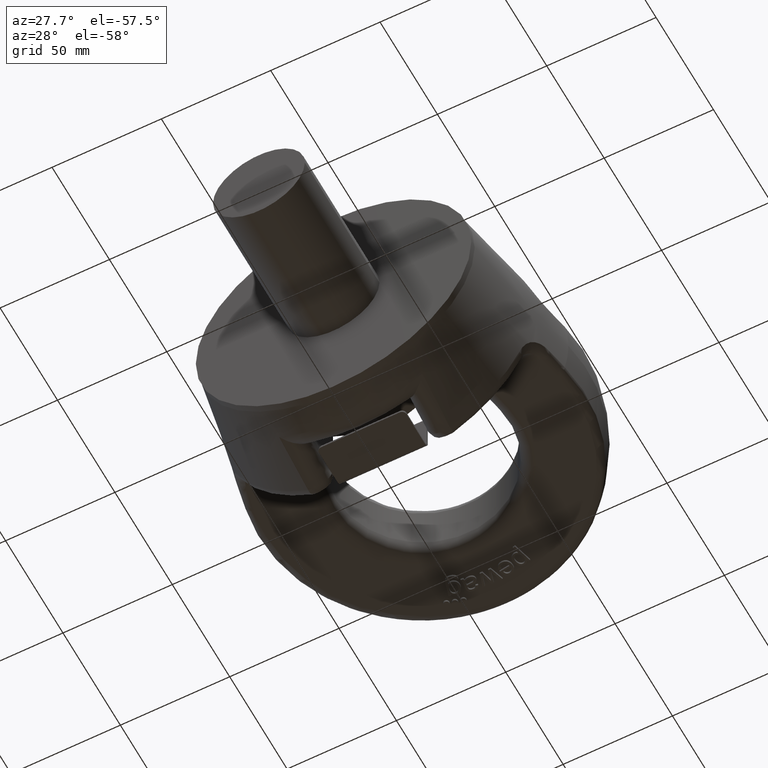
[diagram: clean part render]
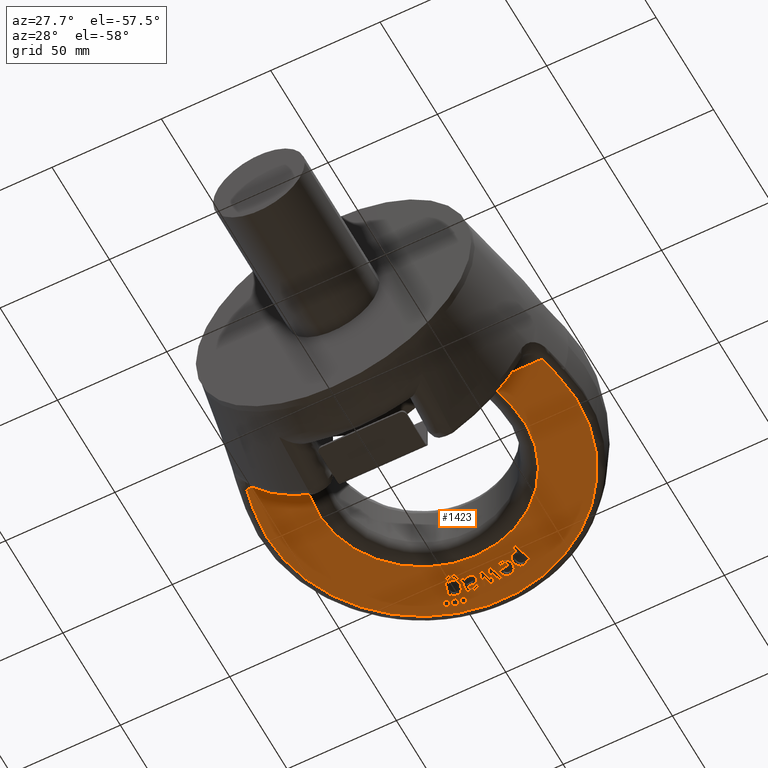
[diagram: same view with one face highlighted and labeled with its STEP entity id]
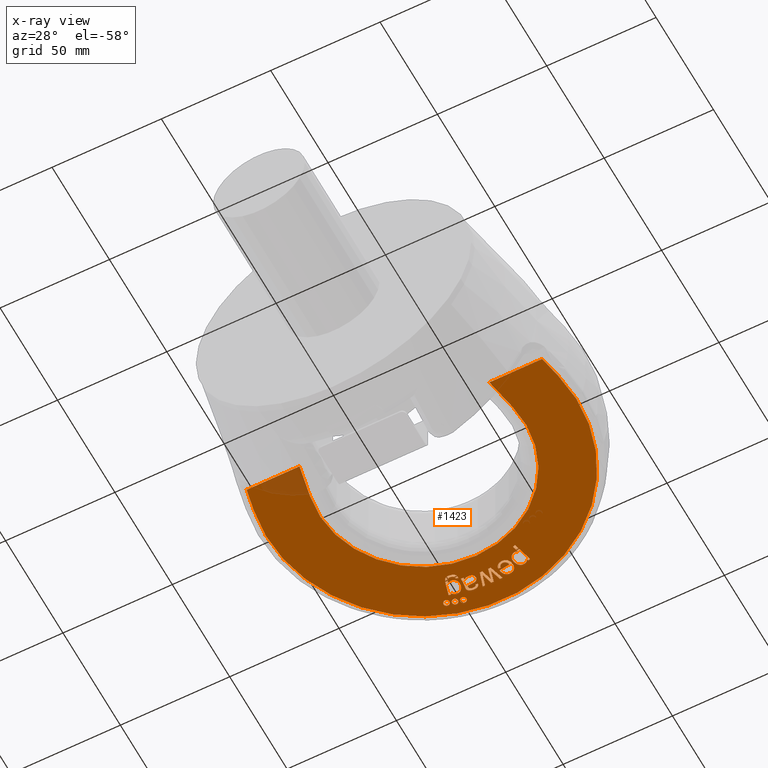
[diagram: x-ray of the same camera — body ghosted, the highlighted face saturated]
A machine part, auxiliary view. The second image highlights one B-rep face of the part: STEP entity #1423.
The next image is the same camera in x-ray: the body ghosted, the highlighted face saturated — about 3% of this face is hidden behind the body in this view.
In plain terms, the highlighted planar face has unit normal (-0, -0, 1).
Its self-contained STEP definition (entity closure, byte-faithful):
#1423=ADVANCED_FACE('',(#1789,#1790,#1791,#1792,#1793,#1794,#1795,#1796,
#1797),#1605,.F.);
#1605=PLANE('',#5249);
#1709=CIRCLE('',#5244,1.35);
#1710=CIRCLE('',#5245,1.35);
#1711=CIRCLE('',#5246,1.35);
#1712=CIRCLE('',#5247,47.2);
#1713=CIRCLE('',#5248,70.953505903514);
#1789=FACE_BOUND('',#1946,.T.);
#1790=FACE_BOUND('',#1947,.T.);
#1791=FACE_BOUND('',#1948,.T.);
#1792=FACE_BOUND('',#1949,.T.);
#1793=FACE_BOUND('',#1950,.T.);
#1794=FACE_BOUND('',#1951,.T.);
#1795=FACE_BOUND('',#1952,.T.);
#1796=FACE_BOUND('',#1953,.T.);
#1797=FACE_BOUND('',#1954,.T.);
#1946=EDGE_LOOP('',(#3273,#3274,#3275,#3276,#3277,#3278,#3279));
#1947=EDGE_LOOP('',(#3280,#3281,#3282,#3283,#3284,#3285,#3286,#3287,#3288,
#3289,#3290,#3291,#3292,#3293,#3294));
#1948=EDGE_LOOP('',(#3295,#3296,#3297,#3298,#3299));
#1949=EDGE_LOOP('',(#3300));
#1950=EDGE_LOOP('',(#3301));
#1951=EDGE_LOOP('',(#3302));
#1952=EDGE_LOOP('',(#3303,#3304,#3305,#3306,#3307,#3308,#3309,#3310));
#1953=EDGE_LOOP('',(#3311,#3312,#3313,#3314,#3315,#3316));
#1954=EDGE_LOOP('',(#3317,#3318,#3319,#3320,#3321,#3322,#3323,#3324,#3325));
#2226=LINE('',#8098,#2534);
#2227=LINE('',#8130,#2535);
#2228=LINE('',#8132,#2536);
#2229=LINE('',#8133,#2537);
#2230=LINE('',#8136,#2538);
#2231=LINE('',#8138,#2539);
#2232=LINE('',#8140,#2540);
#2233=LINE('',#8154,#2541);
#2234=LINE('',#8156,#2542);
#2235=LINE('',#8172,#2543);
#2236=LINE('',#8174,#2544);
#2237=LINE('',#8176,#2545);
#2238=LINE('',#8178,#2546);
#2239=LINE('',#8180,#2547);
#2240=LINE('',#8196,#2548);
#2241=LINE('',#8219,#2549);
#2242=LINE('',#8229,#2550);
#2243=LINE('',#8231,#2551);
#2244=LINE('',#8245,#2552);
#2245=LINE('',#8247,#2553);
#2246=LINE('',#8248,#2554);
#2247=LINE('',#8251,#2555);
#2248=LINE('',#8253,#2556);
#2249=LINE('',#8255,#2557);
#2250=LINE('',#8257,#2558);
#2251=LINE('',#8281,#2559);
#2252=LINE('',#8326,#2560);
#2534=VECTOR('',#5806,1.);
#2535=VECTOR('',#5807,1.);
#2536=VECTOR('',#5808,1.);
#2537=VECTOR('',#5809,1.);
#2538=VECTOR('',#5810,1.);
#2539=VECTOR('',#5811,1.);
#2540=VECTOR('',#5812,1.);
#2541=VECTOR('',#5813,1.);
#2542=VECTOR('',#5814,1.);
#2543=VECTOR('',#5815,1.);
#2544=VECTOR('',#5816,1.);
#2545=VECTOR('',#5817,1.);
#2546=VECTOR('',#5818,1.);
#2547=VECTOR('',#5819,1.);
#2548=VECTOR('',#5820,1.);
#2549=VECTOR('',#5821,1.);
#2550=VECTOR('',#5830,1.);
#2551=VECTOR('',#5831,1.);
#2552=VECTOR('',#5834,1.);
#2553=VECTOR('',#5835,1.);
#2554=VECTOR('',#5836,1.);
#2555=VECTOR('',#5837,1.);
#2556=VECTOR('',#5838,1.);
#2557=VECTOR('',#5839,1.);
#2558=VECTOR('',#5840,1.);
#2559=VECTOR('',#5841,1.);
#2560=VECTOR('',#5842,1.);
#3273=ORIENTED_EDGE('',*,*,#4570,.T.);
#3274=ORIENTED_EDGE('',*,*,#4571,.T.);
#3275=ORIENTED_EDGE('',*,*,#4572,.T.);
#3276=ORIENTED_EDGE('',*,*,#4573,.T.);
#3277=ORIENTED_EDGE('',*,*,#4574,.T.);
#3278=ORIENTED_EDGE('',*,*,#4575,.T.);
#3279=ORIENTED_EDGE('',*,*,#4576,.T.);
#3280=ORIENTED_EDGE('',*,*,#4577,.T.);
#3281=ORIENTED_EDGE('',*,*,#4578,.T.);
#3282=ORIENTED_EDGE('',*,*,#4579,.T.);
#3283=ORIENTED_EDGE('',*,*,#4580,.T.);
#3284=ORIENTED_EDGE('',*,*,#4581,.T.);
#3285=ORIENTED_EDGE('',*,*,#4582,.T.);
#3286=ORIENTED_EDGE('',*,*,#4583,.T.);
#3287=ORIENTED_EDGE('',*,*,#4584,.T.);
#3288=ORIENTED_EDGE('',*,*,#4585,.T.);
#3289=ORIENTED_EDGE('',*,*,#4586,.T.);
#3290=ORIENTED_EDGE('',*,*,#4587,.T.);
#3291=ORIENTED_EDGE('',*,*,#4588,.T.);
#3292=ORIENTED_EDGE('',*,*,#4589,.T.);
#3293=ORIENTED_EDGE('',*,*,#4590,.T.);
#3294=ORIENTED_EDGE('',*,*,#4591,.T.);
#3295=ORIENTED_EDGE('',*,*,#4592,.T.);
#3296=ORIENTED_EDGE('',*,*,#4593,.T.);
#3297=ORIENTED_EDGE('',*,*,#4594,.T.);
#3298=ORIENTED_EDGE('',*,*,#4595,.T.);
#3299=ORIENTED_EDGE('',*,*,#4596,.T.);
#3300=ORIENTED_EDGE('',*,*,#4597,.F.);
#3301=ORIENTED_EDGE('',*,*,#4598,.F.);
#3302=ORIENTED_EDGE('',*,*,#4599,.F.);
#3303=ORIENTED_EDGE('',*,*,#4600,.T.);
#3304=ORIENTED_EDGE('',*,*,#4601,.T.);
#3305=ORIENTED_EDGE('',*,*,#4602,.T.);
#3306=ORIENTED_EDGE('',*,*,#4603,.T.);
#3307=ORIENTED_EDGE('',*,*,#4604,.T.);
#3308=ORIENTED_EDGE('',*,*,#4605,.T.);
#3309=ORIENTED_EDGE('',*,*,#4606,.T.);
#3310=ORIENTED_EDGE('',*,*,#4607,.T.);
#3311=ORIENTED_EDGE('',*,*,#4608,.T.);
#3312=ORIENTED_EDGE('',*,*,#4609,.T.);
#3313=ORIENTED_EDGE('',*,*,#4610,.T.);
#3314=ORIENTED_EDGE('',*,*,#4611,.T.);
#3315=ORIENTED_EDGE('',*,*,#4612,.T.);
#3316=ORIENTED_EDGE('',*,*,#4613,.T.);
#3317=ORIENTED_EDGE('',*,*,#4614,.T.);
#3318=ORIENTED_EDGE('',*,*,#4615,.T.);
#3319=ORIENTED_EDGE('',*,*,#4616,.T.);
#3320=ORIENTED_EDGE('',*,*,#4617,.T.);
#3321=ORIENTED_EDGE('',*,*,#4618,.T.);
#3322=ORIENTED_EDGE('',*,*,#4619,.T.);
#3323=ORIENTED_EDGE('',*,*,#4620,.T.);
#3324=ORIENTED_EDGE('',*,*,#4621,.T.);
#3325=ORIENTED_EDGE('',*,*,#4622,.T.);
#4087=VERTEX_POINT('',#8091);
#4088=VERTEX_POINT('',#8092);
#4089=VERTEX_POINT('',#8097);
#4090=VERTEX_POINT('',#8099);
#4091=VERTEX_POINT('',#8112);
#4092=VERTEX_POINT('',#8129);
#4093=VERTEX_POINT('',#8131);
#4094=VERTEX_POINT('',#8134);
#4095=VERTEX_POINT('',#8135);
#4096=VERTEX_POINT('',#8137);
#4097=VERTEX_POINT('',#8139);
#4098=VERTEX_POINT('',#8141);
#4099=VERTEX_POINT('',#8148);
#4100=VERTEX_POINT('',#8153);
#4101=VERTEX_POINT('',#8155);
#4102=VERTEX_POINT('',#8157);
#4103=VERTEX_POINT('',#8164);
#4104=VERTEX_POINT('',#8171);
#4105=VERTEX_POINT('',#8173);
#4106=VERTEX_POINT('',#8175);
#4107=VERTEX_POINT('',#8177);
#4108=VERTEX_POINT('',#8179);
#4109=VERTEX_POINT('',#8189);
#4110=VERTEX_POINT('',#8190);
#4111=VERTEX_POINT('',#8195);
#4112=VERTEX_POINT('',#8197);
#4113=VERTEX_POINT('',#8218);
#4114=VERTEX_POINT('',#8221);
#4115=VERTEX_POINT('',#8223);
#4116=VERTEX_POINT('',#8225);
#4117=VERTEX_POINT('',#8227);
#4118=VERTEX_POINT('',#8228);
#4119=VERTEX_POINT('',#8230);
#4120=VERTEX_POINT('',#8232);
#4121=VERTEX_POINT('',#8237);
#4122=VERTEX_POINT('',#8239);
#4123=VERTEX_POINT('',#8244);
#4124=VERTEX_POINT('',#8246);
#4125=VERTEX_POINT('',#8249);
#4126=VERTEX_POINT('',#8250);
#4127=VERTEX_POINT('',#8252);
#4128=VERTEX_POINT('',#8254);
#4129=VERTEX_POINT('',#8256);
#4130=VERTEX_POINT('',#8258);
#4131=VERTEX_POINT('',#8282);
#4132=VERTEX_POINT('',#8283);
#4133=VERTEX_POINT('',#8288);
#4134=VERTEX_POINT('',#8305);
#4135=VERTEX_POINT('',#8312);
#4136=VERTEX_POINT('',#8325);
#4137=VERTEX_POINT('',#8327);
#4138=VERTEX_POINT('',#8332);
#4139=VERTEX_POINT('',#8345);
#4570=EDGE_CURVE('',#4087,#4088,#4995,.T.);
#4571=EDGE_CURVE('',#4088,#4089,#4996,.T.);
#4572=EDGE_CURVE('',#4089,#4090,#2226,.T.);
#4573=EDGE_CURVE('',#4090,#4091,#4997,.T.);
#4574=EDGE_CURVE('',#4091,#4092,#4998,.T.);
#4575=EDGE_CURVE('',#4092,#4093,#2227,.T.);
#4576=EDGE_CURVE('',#4093,#4087,#2228,.T.);
#4577=EDGE_CURVE('',#4094,#4095,#2229,.T.);
#4578=EDGE_CURVE('',#4095,#4096,#2230,.T.);
#4579=EDGE_CURVE('',#4096,#4097,#2231,.T.);
#4580=EDGE_CURVE('',#4097,#4098,#2232,.T.);
#4581=EDGE_CURVE('',#4098,#4099,#4999,.T.);
#4582=EDGE_CURVE('',#4099,#4100,#5000,.T.);
#4583=EDGE_CURVE('',#4100,#4101,#2233,.T.);
#4584=EDGE_CURVE('',#4101,#4102,#2234,.T.);
#4585=EDGE_CURVE('',#4102,#4103,#5001,.T.);
#4586=EDGE_CURVE('',#4103,#4104,#5002,.T.);
#4587=EDGE_CURVE('',#4104,#4105,#2235,.T.);
#4588=EDGE_CURVE('',#4105,#4106,#2236,.T.);
#4589=EDGE_CURVE('',#4106,#4107,#2237,.T.);
#4590=EDGE_CURVE('',#4107,#4108,#2238,.T.);
#4591=EDGE_CURVE('',#4108,#4094,#2239,.T.);
#4592=EDGE_CURVE('',#4109,#4110,#5003,.T.);
#4593=EDGE_CURVE('',#4110,#4111,#5004,.T.);
#4594=EDGE_CURVE('',#4111,#4112,#2240,.T.);
#4595=EDGE_CURVE('',#4112,#4113,#5005,.T.);
#4596=EDGE_CURVE('',#4113,#4109,#2241,.T.);
#4597=EDGE_CURVE('',#4114,#4114,#1709,.T.);
#4598=EDGE_CURVE('',#4115,#4115,#1710,.T.);
#4599=EDGE_CURVE('',#4116,#4116,#1711,.T.);
#4600=EDGE_CURVE('',#4117,#4118,#1712,.T.);
#4601=EDGE_CURVE('',#4118,#4119,#2242,.T.);
#4602=EDGE_CURVE('',#4119,#4120,#2243,.T.);
#4603=EDGE_CURVE('',#4120,#4121,#5006,.T.);
#4604=EDGE_CURVE('',#4121,#4122,#1713,.T.);
#4605=EDGE_CURVE('',#4122,#4123,#5007,.T.);
#4606=EDGE_CURVE('',#4123,#4124,#2244,.T.);
#4607=EDGE_CURVE('',#4124,#4117,#2245,.T.);
#4608=EDGE_CURVE('',#4125,#4126,#2246,.T.);
#4609=EDGE_CURVE('',#4126,#4127,#2247,.T.);
#4610=EDGE_CURVE('',#4127,#4128,#2248,.T.);
#4611=EDGE_CURVE('',#4128,#4129,#2249,.T.);
#4612=EDGE_CURVE('',#4129,#4130,#2250,.T.);
#4613=EDGE_CURVE('',#4130,#4125,#5008,.T.);
#4614=EDGE_CURVE('',#4131,#4132,#2251,.T.);
#4615=EDGE_CURVE('',#4132,#4133,#5009,.T.);
#4616=EDGE_CURVE('',#4133,#4134,#5010,.T.);
#4617=EDGE_CURVE('',#4134,#4135,#5011,.T.);
#4618=EDGE_CURVE('',#4135,#4136,#5012,.T.);
#4619=EDGE_CURVE('',#4136,#4137,#2252,.T.);
#4620=EDGE_CURVE('',#4137,#4138,#5013,.T.);
#4621=EDGE_CURVE('',#4138,#4139,#5014,.T.);
#4622=EDGE_CURVE('',#4139,#4131,#5015,.T.);
#4995=B_SPLINE_CURVE_WITH_KNOTS('',3,(#8079,#8080,#8081,#8082,#8083,#8084,
#8085,#8086,#8087,#8088,#8089,#8090),.UNSPECIFIED.,.F.,.F.,(4,2,2,2,2,4),
(0.,0.30564575489209,0.470829306249215,0.636012857606335,0.802206343843956,
1.),.UNSPECIFIED.);
#4996=B_SPLINE_CURVE_WITH_KNOTS('',3,(#8093,#8094,#8095,#8096),
 .UNSPECIFIED.,.F.,.F.,(4,4),(0.,1.),.UNSPECIFIED.);
#4997=B_SPLINE_CURVE_WITH_KNOTS('',3,(#8100,#8101,#8102,#8103,#8104,#8105,
#8106,#8107,#8108,#8109,#8110,#8111),.UNSPECIFIED.,.F.,.F.,(4,2,2,2,2,4),
(0.,0.163304651309286,0.382303784248531,0.6193756611682,0.856447538087862,
1.),.UNSPECIFIED.);
#4998=B_SPLINE_CURVE_WITH_KNOTS('',3,(#8113,#8114,#8115,#8116,#8117,#8118,
#8119,#8120,#8121,#8122,#8123,#8124,#8125,#8126,#8127,#8128),
 .UNSPECIFIED.,.F.,.F.,(4,2,2,2,2,2,2,4),(0.,0.139503666745452,0.312880428291716,
0.486257189837981,0.605370995480452,0.723854105689072,0.842337215897691,
1.),.UNSPECIFIED.);
#4999=B_SPLINE_CURVE_WITH_KNOTS('',3,(#8142,#8143,#8144,#8145,#8146,#8147),
 .UNSPECIFIED.,.F.,.F.,(4,2,4),(0.,0.728909607654954,1.),.UNSPECIFIED.);
#5000=B_SPLINE_CURVE_WITH_KNOTS('',3,(#8149,#8150,#8151,#8152),
 .UNSPECIFIED.,.F.,.F.,(4,4),(0.,1.),.UNSPECIFIED.);
#5001=B_SPLINE_CURVE_WITH_KNOTS('',3,(#8158,#8159,#8160,#8161,#8162,#8163),
 .UNSPECIFIED.,.F.,.F.,(4,2,4),(0.,0.752082276025117,1.),.UNSPECIFIED.);
#5002=B_SPLINE_CURVE_WITH_KNOTS('',3,(#8165,#8166,#8167,#8168,#8169,#8170),
 .UNSPECIFIED.,.F.,.F.,(4,2,4),(0.,0.250451922487266,1.),.UNSPECIFIED.);
#5003=B_SPLINE_CURVE_WITH_KNOTS('',3,(#8181,#8182,#8183,#8184,#8185,#8186,
#8187,#8188),.UNSPECIFIED.,.F.,.F.,(4,2,2,4),(0.,0.363477968613213,0.728087675912439,
1.),.UNSPECIFIED.);
#5004=B_SPLINE_CURVE_WITH_KNOTS('',3,(#8191,#8192,#8193,#8194),
 .UNSPECIFIED.,.F.,.F.,(4,4),(0.,1.),.UNSPECIFIED.);
#5005=B_SPLINE_CURVE_WITH_KNOTS('',3,(#8198,#8199,#8200,#8201,#8202,#8203,
#8204,#8205,#8206,#8207,#8208,#8209,#8210,#8211,#8212,#8213,#8214,#8215,
#8216,#8217),.UNSPECIFIED.,.F.,.F.,(4,2,2,2,2,2,2,2,2,4),(0.,0.102921203122041,
0.206156274885327,0.336063021724233,0.465707475917731,0.599570296299738,
0.733433116681745,0.862845255056166,0.992257393430588,1.),.UNSPECIFIED.);
#5006=B_SPLINE_CURVE_WITH_KNOTS('',3,(#8233,#8234,#8235,#8236),
 .UNSPECIFIED.,.F.,.F.,(4,4),(0.,1.),.UNSPECIFIED.);
#5007=B_SPLINE_CURVE_WITH_KNOTS('',3,(#8240,#8241,#8242,#8243),
 .UNSPECIFIED.,.F.,.F.,(4,4),(0.,1.),.UNSPECIFIED.);
#5008=B_SPLINE_CURVE_WITH_KNOTS('',3,(#8259,#8260,#8261,#8262,#8263,#8264,
#8265,#8266,#8267,#8268,#8269,#8270,#8271,#8272,#8273,#8274,#8275,#8276,
#8277,#8278,#8279,#8280),.UNSPECIFIED.,.F.,.F.,(4,2,2,2,2,2,2,2,2,2,4),
(0.,0.0830854503763861,0.165678296755076,0.273272220956505,0.380460889370536,
0.487248686046697,0.601946689884055,0.717055250849208,0.831909514623429,
0.915821305508706,1.),.UNSPECIFIED.);
#5009=B_SPLINE_CURVE_WITH_KNOTS('',3,(#8284,#8285,#8286,#8287),
 .UNSPECIFIED.,.F.,.F.,(4,4),(0.,1.),.UNSPECIFIED.);
#5010=B_SPLINE_CURVE_WITH_KNOTS('',3,(#8289,#8290,#8291,#8292,#8293,#8294,
#8295,#8296,#8297,#8298,#8299,#8300,#8301,#8302,#8303,#8304),
 .UNSPECIFIED.,.F.,.F.,(4,2,2,2,2,2,2,4),(0.,0.121639465164558,0.243930904991179,
0.445161792748212,0.646392680505254,0.763565096161258,0.881519242448362,
1.),.UNSPECIFIED.);
#5011=B_SPLINE_CURVE_WITH_KNOTS('',3,(#8306,#8307,#8308,#8309,#8310,#8311),
 .UNSPECIFIED.,.F.,.F.,(4,2,4),(0.,0.329344693449401,1.),.UNSPECIFIED.);
#5012=B_SPLINE_CURVE_WITH_KNOTS('',3,(#8313,#8314,#8315,#8316,#8317,#8318,
#8319,#8320,#8321,#8322,#8323,#8324),.UNSPECIFIED.,.F.,.F.,(4,2,2,2,2,4),
(0.,0.0173977322142929,0.217983350684946,0.490675035316417,0.745337517658201,
1.),.UNSPECIFIED.);
#5013=B_SPLINE_CURVE_WITH_KNOTS('',3,(#8328,#8329,#8330,#8331),
 .UNSPECIFIED.,.F.,.F.,(4,4),(0.,1.),.UNSPECIFIED.);
#5014=B_SPLINE_CURVE_WITH_KNOTS('',3,(#8333,#8334,#8335,#8336,#8337,#8338,
#8339,#8340,#8341,#8342,#8343,#8344),.UNSPECIFIED.,.F.,.F.,(4,2,2,2,2,4),
(0.,0.201730292707488,0.402155128097309,0.601755169925858,0.800199545078047,
1.),.UNSPECIFIED.);
#5015=B_SPLINE_CURVE_WITH_KNOTS('',3,(#8346,#8347,#8348,#8349,#8350,#8351,
#8352,#8353,#8354,#8355),.UNSPECIFIED.,.F.,.F.,(4,2,2,2,4),(0.,0.161403604805119,
0.323059797411179,0.661780038481059,1.),.UNSPECIFIED.);
#5244=AXIS2_PLACEMENT_3D('',#8220,#5822,#5823);
#5245=AXIS2_PLACEMENT_3D('',#8222,#5824,#5825);
#5246=AXIS2_PLACEMENT_3D('',#8224,#5826,#5827);
#5247=AXIS2_PLACEMENT_3D('',#8226,#5828,#5829);
#5248=AXIS2_PLACEMENT_3D('',#8238,#5832,#5833);
#5249=AXIS2_PLACEMENT_3D('',#8356,#5843,#5844);
#5806=DIRECTION('',(-0.917933852982257,-0.39673346411558,-2.19690415543153E-15));
#5807=DIRECTION('',(-0.260706291653814,0.96541816302166,-4.98224438362061E-16));
#5808=DIRECTION('',(-0.965418163021668,-0.260706291653783,-2.29229215711237E-15));
#5809=DIRECTION('',(0.258683624345445,-0.96596210199754,4.93422075224694E-16));
#5810=DIRECTION('',(0.999999994901753,0.000100977688239906,2.34292249324494E-15));
#5811=DIRECTION('',(0.297311376779361,0.954780574392651,8.07920587789823E-16));
#5812=DIRECTION('',(-0.999999994901753,-0.000100977688238571,-2.34292249324494E-15));
#5813=DIRECTION('',(-0.266695483234495,0.963780846054911,-5.12447523587552E-16));
#5814=DIRECTION('',(-0.999999994901753,-0.000100977688256983,-2.34292249324494E-15));
#5815=DIRECTION('',(-0.999999994901753,-0.000100977688240413,-2.34292249324494E-15));
#5816=DIRECTION('',(0.303116860480432,-0.9529533928228,5.99042257414365E-16));
#5817=DIRECTION('',(0.999999994901753,0.000100977688244124,2.34292249324494E-15));
#5818=DIRECTION('',(0.260545692182512,0.96546151776502,7.2302748319965E-16));
#5819=DIRECTION('',(0.226094045241894,0.974105478224076,6.43318409180951E-16));
#5820=DIRECTION('',(-0.999787838100414,0.0205980287042291,-2.34001150931523E-15));
#5821=DIRECTION('',(0.990092243257148,-0.140418481127055,2.3033221271081E-15));
#5822=DIRECTION('',(2.34291072916505E-15,1.16620065611886E-16,-1.));
#5823=DIRECTION('',(0.,0.999999999999993,0.));
#5824=DIRECTION('',(2.34291072916505E-15,1.16620065611886E-16,-1.));
#5825=DIRECTION('',(0.,0.999999999999992,0.));
#5826=DIRECTION('',(2.34291072916505E-15,1.16620065611886E-16,-1.));
#5827=DIRECTION('',(0.,0.999999999999992,0.));
#5828=DIRECTION('',(-2.34291072916505E-15,-1.16620065611886E-16,1.));
#5829=DIRECTION('',(-2.61143043306744E-31,1.,1.47010464065831E-16));
#5830=DIRECTION('',(0.191418415492983,-0.981508527833638,3.34012670503699E-16));
#5831=DIRECTION('',(-1.,1.12664696544196E-15,-2.34291072916505E-15));
#5832=DIRECTION('',(2.34291072916505E-15,1.16620065611886E-16,-1.));
#5833=DIRECTION('',(-2.60578067717466E-31,1.,9.77949407227751E-17));
#5834=DIRECTION('',(-1.,-1.12664696544196E-15,-2.34291072916505E-15));
#5835=DIRECTION('',(0.191418415492983,0.981508527833638,5.62939848332869E-16));
#5836=DIRECTION('',(-0.26051131494964,-0.965470794370917,-7.22948022250304E-16));
#5837=DIRECTION('',(0.965470794370913,-0.260511314949653,2.23163103618505E-15));
#5838=DIRECTION('',(0.260511314949639,0.965470794370917,7.22948022250302E-16));
#5839=DIRECTION('',(-0.965470794370915,0.260511314949648,-2.23163103618505E-15));
#5840=DIRECTION('',(-0.260511314949633,-0.965470794370919,-7.22948022250287E-16));
#5841=DIRECTION('',(0.990063864799131,0.140618432714237,2.33603018224587E-15));
#5842=DIRECTION('',(0.962587022531685,0.27097273673487,2.28685632118158E-15));
#5843=DIRECTION('',(-2.34291072916505E-15,-1.16620065611886E-16,1.));
#5844=DIRECTION('',(0.,1.,1.17961196366423E-16));
#8079=CARTESIAN_POINT('',(-18.6475732650024,135.688348922993,-18.));
#8080=CARTESIAN_POINT('',(-18.1577735704755,133.874577884561,-18.));
#8081=CARTESIAN_POINT('',(-17.6679738759486,132.060806846129,-18.));
#8082=CARTESIAN_POINT('',(-16.9134662582767,129.266799253838,-18.));
#8083=CARTESIAN_POINT('',(-16.6244148394714,128.600782404183,-18.));
#8084=CARTESIAN_POINT('',(-15.9964245210929,127.892742596026,-18.));
#8085=CARTESIAN_POINT('',(-15.5876319196078,127.654946625463,-18.));
#8086=CARTESIAN_POINT('',(-14.5797811931535,127.419977472448,-18.));
#8087=CARTESIAN_POINT('',(-14.0053775810003,127.447855860174,-18.));
#8088=CARTESIAN_POINT('',(-12.5986200156733,127.827743625041,-18.));
#8089=CARTESIAN_POINT('',(-12.0268032202452,128.16340858574,-18.));
#8090=CARTESIAN_POINT('',(-11.647613451062,128.628304319799,-18.));
#8091=CARTESIAN_POINT('',(-18.6475732650024,135.688348922993,-18.));
#8092=CARTESIAN_POINT('',(-11.647613451062,128.628304319799,-18.));
#8093=CARTESIAN_POINT('',(-11.647613451062,128.628304319799,-18.));
#8094=CARTESIAN_POINT('',(-11.2684236818787,129.093200053857,-18.));
#8095=CARTESIAN_POINT('',(-11.1797129124568,129.663286982458,-18.));
#8096=CARTESIAN_POINT('',(-11.3786192299609,130.33695309901,-18.));
#8097=CARTESIAN_POINT('',(-11.3786192299609,130.33695309901,-18.));
#8098=CARTESIAN_POINT('',(-117.971486808927,84.2672308992841,-18.0000000000003));
#8099=CARTESIAN_POINT('',(-12.3934013520776,129.898361554181,-18.));
#8100=CARTESIAN_POINT('',(-12.3934013520776,129.898361554181,-18.));
#8101=CARTESIAN_POINT('',(-12.3499378059847,129.566680023468,-18.));
#8102=CARTESIAN_POINT('',(-12.4090421880166,129.300309757975,-18.));
#8103=CARTESIAN_POINT('',(-12.7875245857041,128.829621286799,-18.));
#8104=CARTESIAN_POINT('',(-13.1286723573543,128.631391787049,-18.));
#8105=CARTESIAN_POINT('',(-14.0989279771699,128.369379164656,-18.));
#8106=CARTESIAN_POINT('',(-14.5120839920714,128.362741946443,-18.));
#8107=CARTESIAN_POINT('',(-15.1662512358602,128.610590989668,-18.));
#8108=CARTESIAN_POINT('',(-15.4267386114604,128.838354151109,-18.));
#8109=CARTESIAN_POINT('',(-15.7334404023329,129.368160339222,-18.));
#8110=CARTESIAN_POINT('',(-15.8833236993317,129.819241984079,-18.));
#8111=CARTESIAN_POINT('',(-16.0666769616222,130.516186937936,-18.));
#8112=CARTESIAN_POINT('',(-16.0666769616222,130.516186937936,-18.));
#8113=CARTESIAN_POINT('',(-16.0666769616222,130.516186937936,-18.));
#8114=CARTESIAN_POINT('',(-15.4428659667421,130.09320072585,-18.));
#8115=CARTESIAN_POINT('',(-14.7787404886382,129.979207695666,-18.));
#8116=CARTESIAN_POINT('',(-13.1910494743945,130.407955623217,-18.));
#8117=CARTESIAN_POINT('',(-12.59205996605,130.903588944923,-18.));
#8118=CARTESIAN_POINT('',(-11.9659268852797,132.412959658762,-18.));
#8119=CARTESIAN_POINT('',(-11.9262108692354,133.227379783155,-18.));
#8120=CARTESIAN_POINT('',(-12.3241731210385,134.701068751881,-18.));
#8121=CARTESIAN_POINT('',(-12.5844557946975,135.224608799994,-18.));
#8122=CARTESIAN_POINT('',(-13.3007534327311,136.120546606044,-18.));
#8123=CARTESIAN_POINT('',(-13.7271931030752,136.428014333274,-18.));
#8124=CARTESIAN_POINT('',(-14.7173943320116,136.752058715926,-18.));
#8125=CARTESIAN_POINT('',(-15.2482533979016,136.75894856602,-18.));
#8126=CARTESIAN_POINT('',(-16.5713292431047,136.401658626395,-18.));
#8127=CARTESIAN_POINT('',(-17.1122549360583,135.933629402722,-18.));
#8128=CARTESIAN_POINT('',(-17.4403705961261,135.198728623924,-18.));
#8129=CARTESIAN_POINT('',(-17.4403705961261,135.198728623924,-18.));
#8130=CARTESIAN_POINT('',(-33.5834069795781,194.977801971331,-18.0000000000001));
#8131=CARTESIAN_POINT('',(-17.6456542916264,135.958912073855,-18.));
#8132=CARTESIAN_POINT('',(-136.062247312051,103.981110102527,-18.0000000000003));
#8133=CARTESIAN_POINT('',(-16.6374814608838,199.249938609201,-18.));
#8134=CARTESIAN_POINT('',(0.0290801016660619,137.01458497687,-18.));
#8135=CARTESIAN_POINT('',(1.37194345445705,132.000138816083,-18.));
#8136=CARTESIAN_POINT('',(-151.996868141842,131.984651987961,-18.0000000000004));
#8137=CARTESIAN_POINT('',(2.5456273165022,132.000257331966,-18.));
#8138=CARTESIAN_POINT('',(-2.31547943595332,116.389383817571,-18.));
#8139=CARTESIAN_POINT('',(4.57607451345163,138.520800077345,-18.));
#8140=CARTESIAN_POINT('',(-151.997526550468,138.50498963699,-18.0000000000004));
#8141=CARTESIAN_POINT('',(3.41410406320333,138.520682744255,-18.));
#8142=CARTESIAN_POINT('',(3.41410406320333,138.520682744255,-18.));
#8143=CARTESIAN_POINT('',(3.06204752164003,137.265850564825,-18.));
#8144=CARTESIAN_POINT('',(2.70999098007672,136.011018385394,-18.));
#8145=CARTESIAN_POINT('',(2.22700030761744,134.289498780971,-18.));
#8146=CARTESIAN_POINT('',(2.09564824977333,133.822928710781,-18.));
#8147=CARTESIAN_POINT('',(1.96450515540328,133.356299963189,-18.));
#8148=CARTESIAN_POINT('',(1.96450515540328,133.356299963189,-18.));
#8149=CARTESIAN_POINT('',(1.96450515540328,133.356299963189,-18.));
#8150=CARTESIAN_POINT('',(1.94809940422003,133.425369680679,-18.));
#8151=CARTESIAN_POINT('',(1.83326263327113,133.87432201641,-18.));
#8152=CARTESIAN_POINT('',(1.62233775740486,134.700854827827,-18.));
#8153=CARTESIAN_POINT('',(1.62233775740486,134.700854827827,-18.));
#8154=CARTESIAN_POINT('',(-16.5781775313182,200.473652367774,-18.));
#8155=CARTESIAN_POINT('',(0.565402314207482,138.520395088936,-18.));
#8156=CARTESIAN_POINT('',(-151.997526550467,138.504989636987,-18.0000000000004));
#8157=CARTESIAN_POINT('',(-0.589540088962707,138.520278465522,-18.));
#8158=CARTESIAN_POINT('',(-0.589540088962707,138.520278465522,-18.));
#8159=CARTESIAN_POINT('',(-0.920511869321207,137.259308737484,-18.));
#8160=CARTESIAN_POINT('',(-1.25148364967971,135.998339009446,-18.));
#8161=CARTESIAN_POINT('',(-1.69155754971594,134.321701002893,-18.));
#8162=CARTESIAN_POINT('',(-1.80414550905436,133.906955486971,-18.));
#8163=CARTESIAN_POINT('',(-1.91499054856243,133.491748589752,-18.));
#8164=CARTESIAN_POINT('',(-1.91499054856243,133.491748589752,-18.));
#8165=CARTESIAN_POINT('',(-1.91499054856243,133.491748589752,-18.));
#8166=CARTESIAN_POINT('',(-2.04153778644852,133.911536273921,-18.));
#8167=CARTESIAN_POINT('',(-2.16808502433461,134.331323958089,-18.));
#8168=CARTESIAN_POINT('',(-2.67336059430961,136.007444787986,-18.));
#8169=CARTESIAN_POINT('',(-3.05235328132719,137.263698227339,-18.));
#8170=CARTESIAN_POINT('',(-3.43121379088044,138.519991519879,-18.));
#8171=CARTESIAN_POINT('',(-3.43121379088044,138.519991519879,-18.));
#8172=CARTESIAN_POINT('',(-151.997526550467,138.50498963699,-18.0000000000004));
#8173=CARTESIAN_POINT('',(-4.52524645270697,138.51988104699,-18.));
#8174=CARTESIAN_POINT('',(-25.1464370318688,203.34977370064,-18.0000000000001));
#8175=CARTESIAN_POINT('',(-2.45131415603738,131.999752752366,-18.));
#8176=CARTESIAN_POINT('',(-151.996868141842,131.98465198796,-18.0000000000004));
#8177=CARTESIAN_POINT('',(-1.28231565871096,131.999870795132,-18.));
#8178=CARTESIAN_POINT('',(-3.71565911803799,122.983028298885,-18.));
#8179=CARTESIAN_POINT('',(-0.228502898204642,135.90481222278,-18.));
#8180=CARTESIAN_POINT('',(-2.01940759627063,128.188863421488,-18.));
#8181=CARTESIAN_POINT('',(10.0488043669711,134.131988203754,-18.));
#8182=CARTESIAN_POINT('',(9.90650864108021,133.428963851281,-18.));
#8183=CARTESIAN_POINT('',(9.62545055041137,132.915374854866,-18.));
#8184=CARTESIAN_POINT('',(8.78450247074385,132.266058277175,-18.));
#8185=CARTESIAN_POINT('',(8.29972063783834,132.142996722259,-18.));
#8186=CARTESIAN_POINT('',(7.34409832040553,132.2785265532,-18.));
#8187=CARTESIAN_POINT('',(7.01104921643471,132.43273005304,-18.));
#8188=CARTESIAN_POINT('',(6.75085854623757,132.68356977016,-18.));
#8189=CARTESIAN_POINT('',(10.0488043669711,134.131988203754,-18.));
#8190=CARTESIAN_POINT('',(6.75085854623757,132.68356977016,-18.));
#8191=CARTESIAN_POINT('',(6.75085854623757,132.68356977016,-18.));
#8192=CARTESIAN_POINT('',(6.49331064426441,132.936360099093,-18.));
#8193=CARTESIAN_POINT('',(6.31120754870275,133.304023187007,-18.));
#8194=CARTESIAN_POINT('',(6.20751532435627,133.79078921343,-18.));
#8195=CARTESIAN_POINT('',(6.20751532435627,133.79078921343,-18.));
#8196=CARTESIAN_POINT('',(-152.534400421927,137.061253618477,-18.0000000000004));
#8197=CARTESIAN_POINT('',(5.03733629744289,133.814897709519,-18.));
#8198=CARTESIAN_POINT('',(5.03733629744289,133.814897709519,-18.));
#8199=CARTESIAN_POINT('',(5.12681854921885,133.127835556682,-18.));
#8200=CARTESIAN_POINT('',(5.3904002071977,132.567234215753,-18.));
#8201=CARTESIAN_POINT('',(6.26709708833074,131.697629202166,-18.));
#8202=CARTESIAN_POINT('',(6.86847542477616,131.427440691698,-18.));
#8203=CARTESIAN_POINT('',(8.59184285645717,131.183026457743,-18.));
#8204=CARTESIAN_POINT('',(9.39368822139764,131.364634021955,-18.));
#8205=CARTESIAN_POINT('',(10.6851741623874,132.37088324586,-18.));
#8206=CARTESIAN_POINT('',(11.082228940661,133.143622565152,-18.));
#8207=CARTESIAN_POINT('',(11.385157835863,135.279577512041,-18.));
#8208=CARTESIAN_POINT('',(11.2194825581178,136.163479141517,-18.));
#8209=CARTESIAN_POINT('',(10.2529954533683,137.523720149615,-18.));
#8210=CARTESIAN_POINT('',(9.55575914737477,137.929560019914,-18.));
#8211=CARTESIAN_POINT('',(7.77208545294313,138.182527107278,-18.));
#8212=CARTESIAN_POINT('',(7.0113439844398,137.990439201434,-18.));
#8213=CARTESIAN_POINT('',(5.73117656005979,136.972081093796,-18.));
#8214=CARTESIAN_POINT('',(5.33580660088896,136.186352289806,-18.));
#8215=CARTESIAN_POINT('',(5.17545149734555,135.05568670426,-18.));
#8216=CARTESIAN_POINT('',(5.16386921606165,134.957336336709,-18.));
#8217=CARTESIAN_POINT('',(5.15008025430586,134.826743065279,-18.));
#8218=CARTESIAN_POINT('',(5.15008025430586,134.826743065279,-18.));
#8219=CARTESIAN_POINT('',(-152.81826729619,157.230388362226,-18.0000000000004));
#8220=CARTESIAN_POINT('',(-14.3991316501556,140.590132943103,-18.));
#8221=CARTESIAN_POINT('',(-14.3991316501556,141.940132943103,-18.));
#8222=CARTESIAN_POINT('',(-17.8003597734345,139.723099348934,-18.));
#8223=CARTESIAN_POINT('',(-17.8003597734345,141.073099348934,-18.));
#8224=CARTESIAN_POINT('',(-21.15,138.67428556538,-18.0000000000001));
#8225=CARTESIAN_POINT('',(-21.15,140.02428556538,-18.0000000000001));
#8226=CARTESIAN_POINT('',(4.21723931249709E-14,77.,-18.));
#8227=CARTESIAN_POINT('',(46.3272025137478,67.9650507887312,-17.9999999999999));
#8228=CARTESIAN_POINT('',(-46.3272025137477,67.9650507887312,-18.0000000000001));
#8229=CARTESIAN_POINT('',(-43.1398623210519,51.6217874084505,-18.0000000000001));
#8230=CARTESIAN_POINT('',(-43.4086478313206,53.,-18.0000000000001));
#8231=CARTESIAN_POINT('',(-152.,53.0000000000001,-18.0000000000004));
#8232=CARTESIAN_POINT('',(-67.5659516039045,53.,-18.0000000000002));
#8233=CARTESIAN_POINT('',(-67.5659516039045,53.,-18.0000000000002));
#8234=CARTESIAN_POINT('',(-68.2400102788229,56.3803539853523,-18.0000000000002));
#8235=CARTESIAN_POINT('',(-68.9136478116254,59.7607919712428,-18.0000000000002));
#8236=CARTESIAN_POINT('',(-69.5868997766388,63.141306718308,-18.0000000000002));
#8237=CARTESIAN_POINT('',(-69.5868997766388,63.141306718308,-18.0000000000002));
#8238=CARTESIAN_POINT('',(4.21723931249709E-14,77.,-18.));
#8239=CARTESIAN_POINT('',(69.5868997766389,63.1413067183082,-17.9999999999999));
#8240=CARTESIAN_POINT('',(69.5868997766389,63.1413067183082,-17.9999999999999));
#8241=CARTESIAN_POINT('',(68.9136478116255,59.7607919712429,-17.9999999999999));
#8242=CARTESIAN_POINT('',(68.2400102788231,56.3803539853523,-17.9999999999999));
#8243=CARTESIAN_POINT('',(67.5659516039047,53.,-17.9999999999999));
#8244=CARTESIAN_POINT('',(67.5659516039047,53.,-17.9999999999999));
#8245=CARTESIAN_POINT('',(-152.,52.9999999999998,-18.0000000000004));
#8246=CARTESIAN_POINT('',(43.4086478313207,53.,-17.9999999999999));
#8247=CARTESIAN_POINT('',(46.3272025137478,67.9650507887312,-17.9999999999999));
#8248=CARTESIAN_POINT('',(12.8493530908132,118.518984113582,-18.));
#8249=CARTESIAN_POINT('',(16.0384879672337,130.338112135292,-18.));
#8250=CARTESIAN_POINT('',(15.2119693363805,127.274983766965,-18.));
#8251=CARTESIAN_POINT('',(-149.637383754432,171.755999653385,-18.0000000000004));
#8252=CARTESIAN_POINT('',(16.2976292131768,126.982042039736,-18.));
#8253=CARTESIAN_POINT('',(13.9350129676096,118.226042386353,-18.));
#8254=CARTESIAN_POINT('',(18.6470294142307,135.689062227497,-18.));
#8255=CARTESIAN_POINT('',(-147.287983553378,180.463019841145,-18.0000000000003));
#8256=CARTESIAN_POINT('',(17.658626568064,135.955761258329,-18.));
#8257=CARTESIAN_POINT('',(12.9466101214434,118.492741417186,-18.));
#8258=CARTESIAN_POINT('',(17.437901708736,135.13774149088,-18.));
#8259=CARTESIAN_POINT('',(17.437901708736,135.13774149088,-18.));
#8260=CARTESIAN_POINT('',(17.2913077906352,135.520696594792,-18.));
#8261=CARTESIAN_POINT('',(17.0914561435123,135.832172159511,-18.));
#8262=CARTESIAN_POINT('',(16.5912482202752,136.309524329811,-18.));
#8263=CARTESIAN_POINT('',(16.2562523719559,136.486783649555,-18.));
#8264=CARTESIAN_POINT('',(15.2927292312992,136.74676943247,-18.));
#8265=CARTESIAN_POINT('',(14.7709187333171,136.737331191614,-18.));
#8266=CARTESIAN_POINT('',(13.7871627190294,136.412479185382,-18.));
#8267=CARTESIAN_POINT('',(13.3653534807531,136.105470445122,-18.));
#8268=CARTESIAN_POINT('',(12.6691337212644,135.212691091631,-18.));
#8269=CARTESIAN_POINT('',(12.4105140469942,134.689038506076,-18.));
#8270=CARTESIAN_POINT('',(12.074628391495,133.44422581648,-18.));
#8271=CARTESIAN_POINT('',(12.0356948375195,132.832318834153,-18.));
#8272=CARTESIAN_POINT('',(12.2293878240213,131.676341758327,-18.));
#8273=CARTESIAN_POINT('',(12.4654706287329,131.187746585105,-18.));
#8274=CARTESIAN_POINT('',(13.2115656195791,130.395671360626,-18.));
#8275=CARTESIAN_POINT('',(13.6462557340304,130.132258385928,-18.));
#8276=CARTESIAN_POINT('',(14.5034746784175,129.90095648047,-18.));
#8277=CARTESIAN_POINT('',(14.8495656991117,129.888651875598,-18.));
#8278=CARTESIAN_POINT('',(15.5054748459878,130.031729959351,-18.));
#8279=CARTESIAN_POINT('',(15.7912421028351,130.159199727333,-18.));
#8280=CARTESIAN_POINT('',(16.0384879672337,130.338112135292,-18.));
#8281=CARTESIAN_POINT('',(-144.755409479059,111.992410514019,-18.0000000000003));
#8282=CARTESIAN_POINT('',(-10.7179285408917,131.029708171896,-18.));
#8283=CARTESIAN_POINT('',(-9.55590655445861,131.19474975792,-18.));
#8284=CARTESIAN_POINT('',(-9.55590655445859,131.19474975792,-18.));
#8285=CARTESIAN_POINT('',(-9.47198823379595,131.436891709198,-18.));
#8286=CARTESIAN_POINT('',(-9.43564683105257,131.714135065402,-18.));
#8287=CARTESIAN_POINT('',(-9.44623483234029,132.021920821781,-18.));
#8288=CARTESIAN_POINT('',(-9.44623483234029,132.021920821781,-18.));
#8289=CARTESIAN_POINT('',(-9.44623483234029,132.021920821781,-18.));
#8290=CARTESIAN_POINT('',(-8.98449341485116,131.736353492748,-18.));
#8291=CARTESIAN_POINT('',(-8.55323313903954,131.548778297943,-18.));
#8292=CARTESIAN_POINT('',(-7.75017598621178,131.373703243707,-18.));
#8293=CARTESIAN_POINT('',(-7.33175120562313,131.361814713163,-18.));
#8294=CARTESIAN_POINT('',(-6.17204862435259,131.526526874864,-18.));
#8295=CARTESIAN_POINT('',(-5.64231631825573,131.778501468644,-18.));
#8296=CARTESIAN_POINT('',(-4.96605710496882,132.581497914607,-18.));
#8297=CARTESIAN_POINT('',(-4.83403591846786,133.051393018488,-18.));
#8298=CARTESIAN_POINT('',(-4.95544477249972,133.906206409048,-18.));
#8299=CARTESIAN_POINT('',(-5.07078286959982,134.185161632302,-18.));
#8300=CARTESIAN_POINT('',(-5.43806561663843,134.664975958623,-18.));
#8301=CARTESIAN_POINT('',(-5.65946452762217,134.84803221103,-18.));
#8302=CARTESIAN_POINT('',(-6.17845759188435,135.095953170929,-18.));
#8303=CARTESIAN_POINT('',(-6.461192350793,135.178330805456,-18.));
#8304=CARTESIAN_POINT('',(-6.76973146158532,135.218226577555,-18.));
#8305=CARTESIAN_POINT('',(-6.76973146158532,135.218226577555,-18.));
#8306=CARTESIAN_POINT('',(-6.76973146158532,135.218226577555,-18.));
#8307=CARTESIAN_POINT('',(-6.99816887562885,135.243918826202,-18.));
#8308=CARTESIAN_POINT('',(-7.33529457536772,135.251848629275,-18.));
#8309=CARTESIAN_POINT('',(-8.69597655843907,135.220993215396,-18.));
#8310=CARTESIAN_POINT('',(-9.3770870917072,135.250213732658,-18.));
#8311=CARTESIAN_POINT('',(-9.82225868087365,135.335817233464,-18.));
#8312=CARTESIAN_POINT('',(-9.82225868087365,135.335817233464,-18.));
#8313=CARTESIAN_POINT('',(-9.82225868087365,135.335817233464,-18.));
#8314=CARTESIAN_POINT('',(-9.84826544950834,135.485605541556,-18.));
#8315=CARTESIAN_POINT('',(-9.86418264632245,135.581015216975,-18.));
#8316=CARTESIAN_POINT('',(-9.93314287541255,136.066549222813,-18.));
#8317=CARTESIAN_POINT('',(-9.87112869621938,136.396274069415,-18.));
#8318=CARTESIAN_POINT('',(-9.43970784260686,136.89650312201,-18.));
#8319=CARTESIAN_POINT('',(-9.03331283748421,137.078036251866,-18.));
#8320=CARTESIAN_POINT('',(-7.94783122141499,137.232206835218,-18.));
#8321=CARTESIAN_POINT('',(-7.55018344361386,137.197990680285,-18.));
#8322=CARTESIAN_POINT('',(-6.99803833133955,136.908984958917,-18.));
#8323=CARTESIAN_POINT('',(-6.76947935132692,136.61587914799,-18.));
#8324=CARTESIAN_POINT('',(-6.58379513711371,136.174829235467,-18.));
#8325=CARTESIAN_POINT('',(-6.58379513711371,136.174829235467,-18.));
#8326=CARTESIAN_POINT('',(-134.325698040644,100.21488772862,-18.0000000000003));
#8327=CARTESIAN_POINT('',(-5.51671456030338,136.475217395132,-18.));
#8328=CARTESIAN_POINT('',(-5.51671456030338,136.475217395132,-18.));
#8329=CARTESIAN_POINT('',(-5.68152412805373,136.919232126565,-18.));
#8330=CARTESIAN_POINT('',(-5.89633111437336,137.265451808649,-18.));
#8331=CARTESIAN_POINT('',(-6.16345492442484,137.513547017059,-18.));
#8332=CARTESIAN_POINT('',(-6.16345492442484,137.513547017059,-18.));
#8333=CARTESIAN_POINT('',(-6.16345492442484,137.513547017059,-18.));
#8334=CARTESIAN_POINT('',(-6.42858308625785,137.764251152167,-18.));
#8335=CARTESIAN_POINT('',(-6.78869552902676,137.934025623853,-18.));
#8336=CARTESIAN_POINT('',(-7.68734172608477,138.116997986028,-18.));
#8337=CARTESIAN_POINT('',(-8.19729555361294,138.122318715582,-18.));
#8338=CARTESIAN_POINT('',(-9.32220705744536,137.962547918732,-18.));
#8339=CARTESIAN_POINT('',(-9.76742151792495,137.831875182476,-18.));
#8340=CARTESIAN_POINT('',(-10.4336780125227,137.472909125517,-18.));
#8341=CARTESIAN_POINT('',(-10.6677602205612,137.273785573245,-18.));
#8342=CARTESIAN_POINT('',(-10.942364625959,136.833433449814,-18.));
#8343=CARTESIAN_POINT('',(-11.0221103104813,136.569995935826,-18.));
#8344=CARTESIAN_POINT('',(-11.0443177384132,136.259877741293,-18.));
#8345=CARTESIAN_POINT('',(-11.0443177384132,136.259877741293,-18.));
#8346=CARTESIAN_POINT('',(-11.0443177384132,136.259877741293,-18.));
#8347=CARTESIAN_POINT('',(-11.0548801515989,136.067687757383,-18.));
#8348=CARTESIAN_POINT('',(-11.0258431221187,135.729965513697,-18.));
#8349=CARTESIAN_POINT('',(-10.8878147449572,134.758137667896,-18.));
#8350=CARTESIAN_POINT('',(-10.8187465968857,134.271843827934,-18.));
#8351=CARTESIAN_POINT('',(-10.6049590948083,132.766612426424,-18.));
#8352=CARTESIAN_POINT('',(-10.5368536882017,132.120498513489,-18.));
#8353=CARTESIAN_POINT('',(-10.557846551855,131.569107626208,-18.));
#8354=CARTESIAN_POINT('',(-10.6137299811004,131.295659887781,-18.));
#8355=CARTESIAN_POINT('',(-10.7179285408917,131.029708171896,-18.));
#8356=CARTESIAN_POINT('',(-152.,163.,-18.0000000000004));